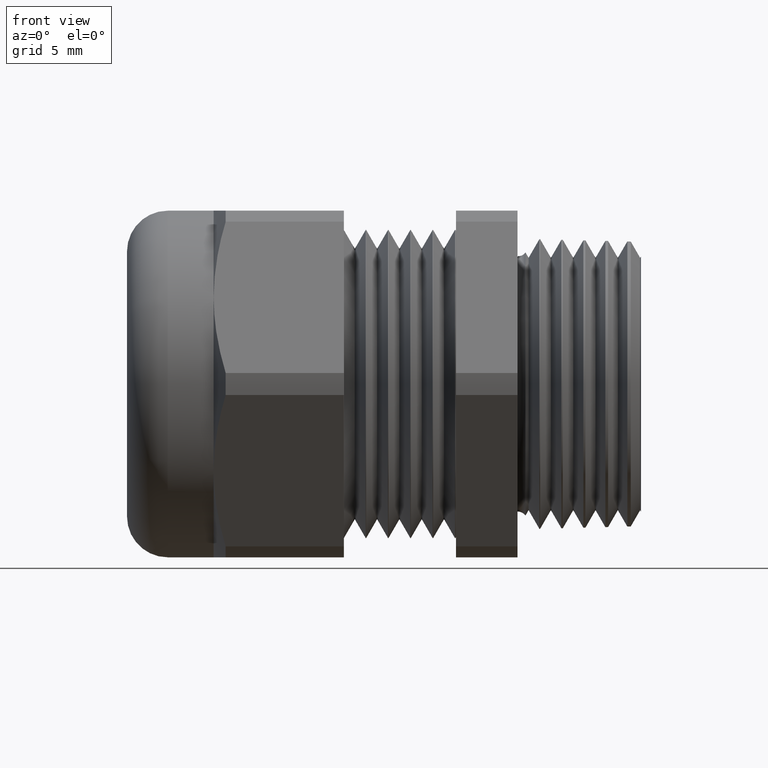
[diagram: clean part render]
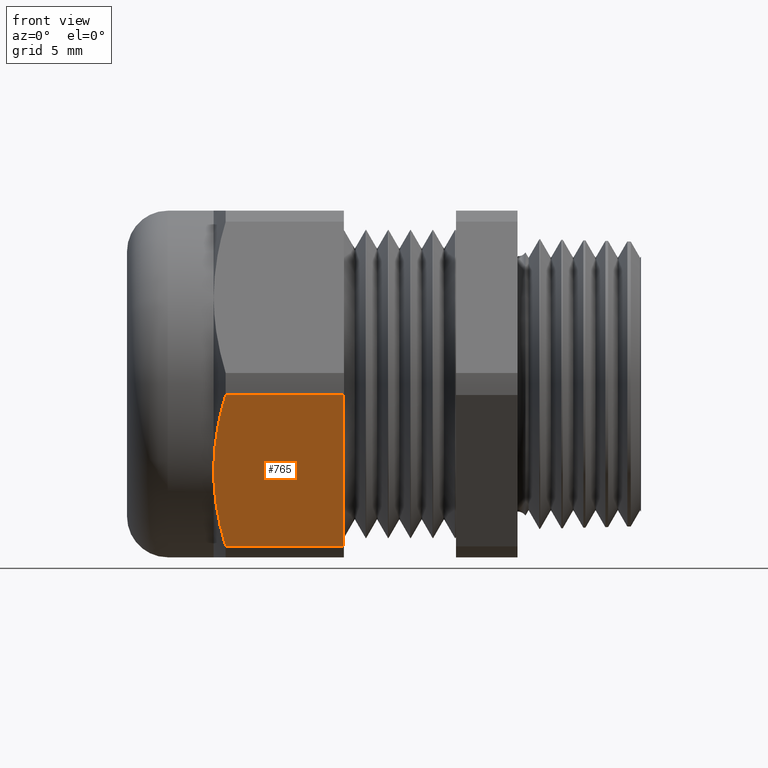
[diagram: same view with one face highlighted and labeled with its STEP entity id]
A machine part, front view. The second image highlights one B-rep face of the part: STEP entity #765.
In plain terms, the highlighted planar face has unit normal (0, -0.866, -0.5).
Its self-contained STEP definition (entity closure, byte-faithful):
#494 = VERTEX_POINT ( 'NONE', #1734 ) ;
#534 = VERTEX_POINT ( 'NONE', #1833 ) ;
#535 = VERTEX_POINT ( 'NONE', #1832 ) ;
#537 = EDGE_CURVE ( 'NONE', #494, #535, #1831, .T. ) ;
#562 = EDGE_CURVE ( 'NONE', #534, #563, #1907, .T. ) ;
#563 = VERTEX_POINT ( 'NONE', #1903 ) ;
#677 = ORIENTED_EDGE ( 'NONE', *, *, #678, .T. ) ;
#678 = EDGE_CURVE ( 'NONE', #534, #679, #2126, .T. ) ;
#679 = VERTEX_POINT ( 'NONE', #2125 ) ;
#680 = ORIENTED_EDGE ( 'NONE', *, *, #681, .T. ) ;
#681 = EDGE_CURVE ( 'NONE', #679, #494, #2179, .T. ) ;
#682 = ORIENTED_EDGE ( 'NONE', *, *, #537, .T. ) ;
#683 = ORIENTED_EDGE ( 'NONE', *, *, #684, .T. ) ;
#684 = EDGE_CURVE ( 'NONE', #535, #563, #2178, .T. ) ;
#709 = EDGE_LOOP ( 'NONE', ( #766, #677, #680, #682, #683 ) ) ;
#765 = ADVANCED_FACE ( 'NONE', ( #2286 ), #2284, .T. ) ;
#766 = ORIENTED_EDGE ( 'NONE', *, *, #562, .F. ) ;
#1734 = CARTESIAN_POINT ( 'NONE',  ( -0.7323623159483017000, -0.2670182247938400800, -0.4075108681102213600 ) ) ;
#1828 = DIRECTION ( 'NONE',  ( 1.000000000000000000, 0.0000000000000000000, 0.0000000000000000000 ) ) ;
#1829 = VECTOR ( 'NONE', #1828, 39.37007874015748100 ) ;
#1830 = CARTESIAN_POINT ( 'NONE',  ( -2.154289792128107500, -0.2670182247938400800, -0.4075108681102213600 ) ) ;
#1831 = LINE ( 'NONE', #1830, #1829 ) ;
#1832 = CARTESIAN_POINT ( 'NONE',  ( -0.4358333333333330200, -0.2670182247938400800, -0.4075108681102213600 ) ) ;
#1833 = CARTESIAN_POINT ( 'NONE',  ( -0.7323623159483017000, -0.4864238764986216200, -0.02748913188977886900 ) ) ;
#1903 = CARTESIAN_POINT ( 'NONE',  ( -0.4358333333333330200, -0.4864238764986216200, -0.02748913188977887900 ) ) ;
#1904 = DIRECTION ( 'NONE',  ( 1.000000000000000000, 0.0000000000000000000, 0.0000000000000000000 ) ) ;
#1905 = VECTOR ( 'NONE', #1904, 39.37007874015748100 ) ;
#1906 = CARTESIAN_POINT ( 'NONE',  ( -2.154289792128107500, -0.4864238764986216200, -0.02748913188977887900 ) ) ;
#1907 = LINE ( 'NONE', #1906, #1905 ) ;
#2123 = CARTESIAN_POINT ( 'NONE',  ( -0.7417450122960579400, -0.4683805020350343400, -0.05874117320070269100 ) ) ;
#2124 = CARTESIAN_POINT ( 'NONE',  ( -0.7323623159483017000, -0.4864238764986216200, -0.02748913188977886900 ) ) ;
#2125 = CARTESIAN_POINT ( 'NONE',  ( -0.7624999999999999600, -0.3767210506462306800, -0.2175000000000001700 ) ) ;
#2126 = B_SPLINE_CURVE_WITH_KNOTS ( 'NONE', 3,
 ( #2124, #2123, #2183, #2182, #2181, #2180 ),
 .UNSPECIFIED., .F., .F.,
 ( 4, 2, 4 ),
 ( 2.361310027911403600E-007, 0.002811853236709174000, 0.005623470342415556200 ),
 .UNSPECIFIED. ) ;
#2167 = DIRECTION ( 'NONE',  ( 0.0000000000000000000, -0.5000000000000001100, 0.8660254037844384900 ) ) ;
#2168 = CARTESIAN_POINT ( 'NONE',  ( -0.7323623159483017000, -0.2670182247938400800, -0.4075108681102213600 ) ) ;
#2169 = CARTESIAN_POINT ( 'NONE',  ( -0.7417006885249694000, -0.2849763625227513800, -0.3764064611544274400 ) ) ;
#2170 = CARTESIAN_POINT ( 'NONE',  ( -0.7492861424846492000, -0.3030780735765339900, -0.3450533779053449000 ) ) ;
#2171 = CARTESIAN_POINT ( 'NONE',  ( -0.7571011813166667000, -0.3305224803797970300, -0.2975182709385042500 ) ) ;
#2172 = CARTESIAN_POINT ( 'NONE',  ( -0.7591120385614667000, -0.3397192804815633600, -0.2815889458951901800 ) ) ;
#2173 = CARTESIAN_POINT ( 'NONE',  ( -0.7618159347075881300, -0.3582208169916172300, -0.2495433446416864000 ) ) ;
#2174 = CARTESIAN_POINT ( 'NONE',  ( -0.7625000000000002900, -0.3675034096785896300, -0.2334654224818830400 ) ) ;
#2175 = CARTESIAN_POINT ( 'NONE',  ( -0.7624999999999999600, -0.3767210506462306800, -0.2175000000000001700 ) ) ;
#2176 = VECTOR ( 'NONE', #2167, 39.37007874015748900 ) ;
#2177 = CARTESIAN_POINT ( 'NONE',  ( -0.4358333333333332400, -0.2799960506462307300, -0.3850326143620998500 ) ) ;
#2178 = LINE ( 'NONE', #2177, #2176 ) ;
#2179 = B_SPLINE_CURVE_WITH_KNOTS ( 'NONE', 3,
 ( #2175, #2174, #2173, #2172, #2171, #2170, #2169, #2168 ),
 .UNSPECIFIED., .F., .F.,
 ( 4, 2, 2, 4 ),
 ( 0.005623470342415556200, 0.007019771465515188200, 0.008416072588614820200, 0.01120867483481407700 ),
 .UNSPECIFIED. ) ;
#2180 = CARTESIAN_POINT ( 'NONE',  ( -0.7624999999999999600, -0.3767210506462306800, -0.2175000000000001700 ) ) ;
#2181 = CARTESIAN_POINT ( 'NONE',  ( -0.7624999999999999600, -0.3952818586196198400, -0.1853517375605607800 ) ) ;
#2182 = CARTESIAN_POINT ( 'NONE',  ( -0.7597203606031718300, -0.4136893760552172700, -0.1534689821208962100 ) ) ;
#2183 = CARTESIAN_POINT ( 'NONE',  ( -0.7493311775536699600, -0.4502380531313302000, -0.09016481647564068800 ) ) ;
#2280 = DIRECTION ( 'NONE',  ( 0.0000000000000000000, 0.5000000000000001100, -0.8660254037844384900 ) ) ;
#2281 = DIRECTION ( 'NONE',  ( 0.0000000000000000000, -0.8660254037844386000, -0.5000000000000002200 ) ) ;
#2282 = CARTESIAN_POINT ( 'NONE',  ( -2.154289792128107500, -0.4864238764986216200, -0.02748913188977887900 ) ) ;
#2283 = AXIS2_PLACEMENT_3D ( 'NONE', #2282, #2281, #2280 ) ;
#2284 = PLANE ( 'NONE',  #2283 ) ;
#2286 = FACE_OUTER_BOUND ( 'NONE', #709, .T. ) ;